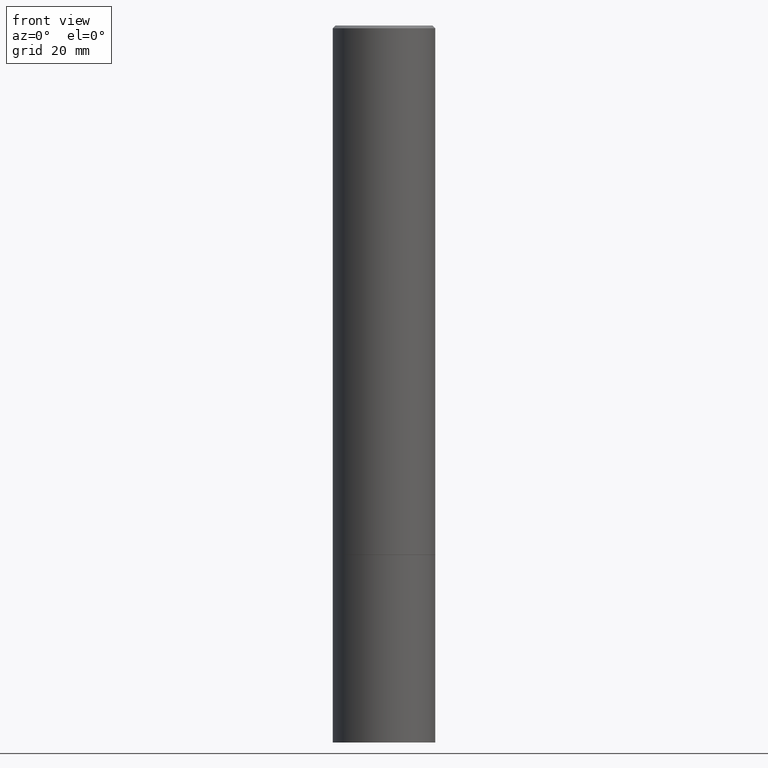
[diagram: clean part render]
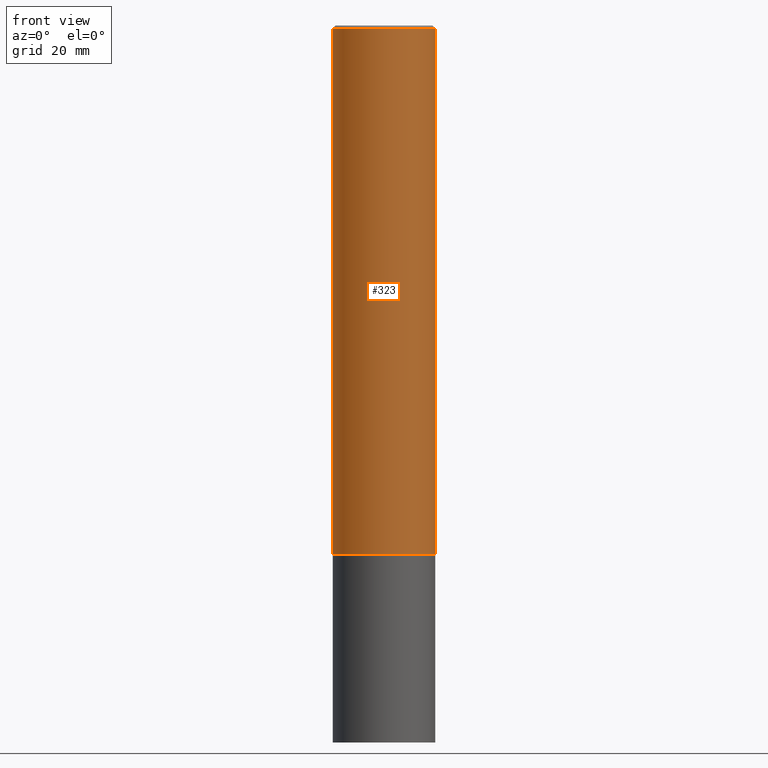
[diagram: same view with one face highlighted and labeled with its STEP entity id]
A machine part, front view. The second image highlights one B-rep face of the part: STEP entity #323.
In plain terms, the highlighted cylindrical surface (partial cylindrical patch) has radius 9.525 mm, axis along (-0, 0, 1).
Its self-contained STEP definition (entity closure, byte-faithful):
#15 = ORIENTED_EDGE ( 'NONE', *, *, #292, .F. ) ;
#34 = FACE_OUTER_BOUND ( 'NONE', #333, .T. ) ;
#37 = DIRECTION ( 'NONE',  ( -2.445468806185136597E-29, 3.491481338843145583E-15, 1.000000000000000000 ) ) ;
#38 = DIRECTION ( 'NONE',  ( 1.000000000000000000, -6.982962677686266711E-15, 4.876176775795935793E-29 ) ) ;
#45 = LINE ( 'NONE', #189, #147 ) ;
#61 = CARTESIAN_POINT ( 'NONE',  ( 0.000000000000000000, 0.000000000000000000, 0.000000000000000000 ) ) ;
#75 = DIRECTION ( 'NONE',  ( 1.000000000000000000, -6.982962677686269077E-15, 0.000000000000000000 ) ) ;
#84 = AXIS2_PLACEMENT_3D ( 'NONE', #176, #233, #289 ) ;
#85 = AXIS2_PLACEMENT_3D ( 'NONE', #339, #313, #75 ) ;
#86 = CARTESIAN_POINT ( 'NONE',  ( 0.3749999999999996669, -2.618611004132347650E-15, 1.828566290923474241E-29 ) ) ;
#98 = VECTOR ( 'NONE', #290, 39.37007874015748143 ) ;
#100 = EDGE_CURVE ( 'NONE', #226, #169, #45, .T. ) ;
#146 = CYLINDRICAL_SURFACE ( 'NONE', #336, 0.3749999999999996669 ) ;
#147 = VECTOR ( 'NONE', #306, 39.37007874015748143 ) ;
#162 = ORIENTED_EDGE ( 'NONE', *, *, #197, .T. ) ;
#163 = VERTEX_POINT ( 'NONE', #343 ) ;
#169 = VERTEX_POINT ( 'NONE', #340 ) ;
#176 = CARTESIAN_POINT ( 'NONE',  ( 4.890937612370294178E-31, -6.982962677686321191E-17, -0.02000000000000008715 ) ) ;
#189 = CARTESIAN_POINT ( 'NONE',  ( -0.3749999999999996669, 2.664535259100373330E-15, -1.844600658845587917E-29 ) ) ;
#197 = EDGE_CURVE ( 'NONE', #226, #312, #346, .T. ) ;
#208 = LINE ( 'NONE', #86, #98 ) ;
#226 = VERTEX_POINT ( 'NONE', #317 ) ;
#233 = DIRECTION ( 'NONE',  ( -2.445468806185136597E-29, 3.491481338843145583E-15, 1.000000000000000000 ) ) ;
#251 = CIRCLE ( 'NONE', #84, 0.3749999999999993894 ) ;
#289 = DIRECTION ( 'NONE',  ( 1.000000000000000000, -6.982962677686266711E-15, 0.000000000000000000 ) ) ;
#290 = DIRECTION ( 'NONE',  ( -2.445468806185136877E-29, 3.491481338843145188E-15, 1.000000000000000000 ) ) ;
#292 = EDGE_CURVE ( 'NONE', #169, #163, #251, .T. ) ;
#306 = DIRECTION ( 'NONE',  ( -2.445468806185136877E-29, 3.491481338843145188E-15, 1.000000000000000000 ) ) ;
#308 = ORIENTED_EDGE ( 'NONE', *, *, #100, .F. ) ;
#309 = ORIENTED_EDGE ( 'NONE', *, *, #319, .T. ) ;
#312 = VERTEX_POINT ( 'NONE', #325 ) ;
#313 = DIRECTION ( 'NONE',  ( -2.445468806185136597E-29, 3.491481338843145583E-15, 1.000000000000000000 ) ) ;
#317 = CARTESIAN_POINT ( 'NONE',  ( -0.3749999999999999445, -4.133378907627225046E-15, -3.874000000000000110 ) ) ;
#319 = EDGE_CURVE ( 'NONE', #312, #163, #208, .T. ) ;
#323 = ADVANCED_FACE ( 'NONE', ( #34 ), #146, .T. ) ;
#325 = CARTESIAN_POINT ( 'NONE',  ( 0.3749999999999999445, -1.614460971081069609E-14, -3.874000000000000110 ) ) ;
#333 = EDGE_LOOP ( 'NONE', ( #308, #162, #309, #15 ) ) ;
#336 = AXIS2_PLACEMENT_3D ( 'NONE', #61, #37, #38 ) ;
#339 = CARTESIAN_POINT ( 'NONE',  ( 9.473746155161219831E-29, -1.352599870667834608E-14, -3.874000000000000110 ) ) ;
#340 = CARTESIAN_POINT ( 'NONE',  ( -0.3749999999999993894, 2.548781377355482380E-15, -0.02000000000000008715 ) ) ;
#343 = CARTESIAN_POINT ( 'NONE',  ( 0.3749999999999993894, -2.642516375941183690E-15, -0.02000000000000008715 ) ) ;
#346 = CIRCLE ( 'NONE', #85, 0.3749999999999999445 ) ;